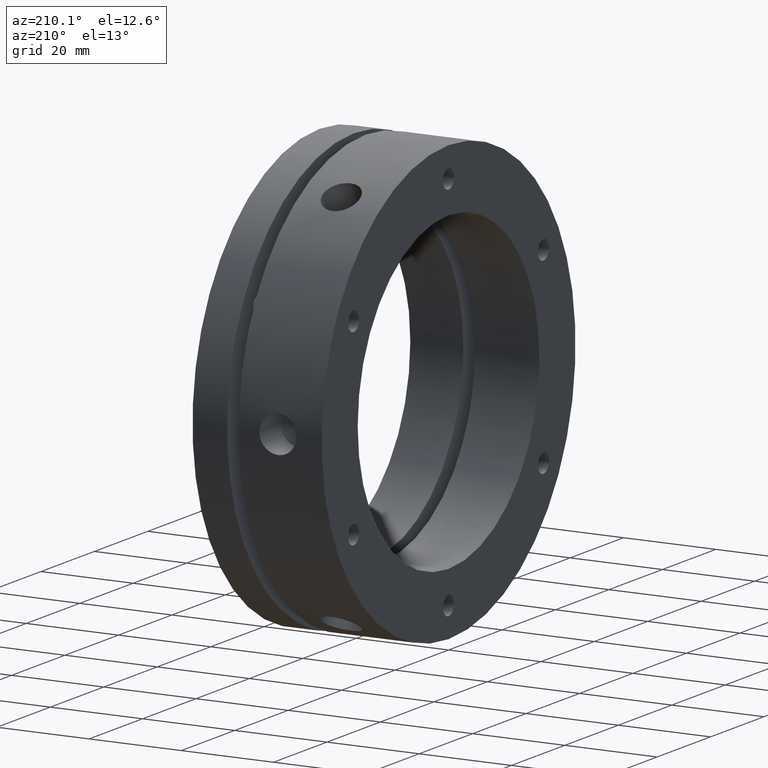
[diagram: clean part render]
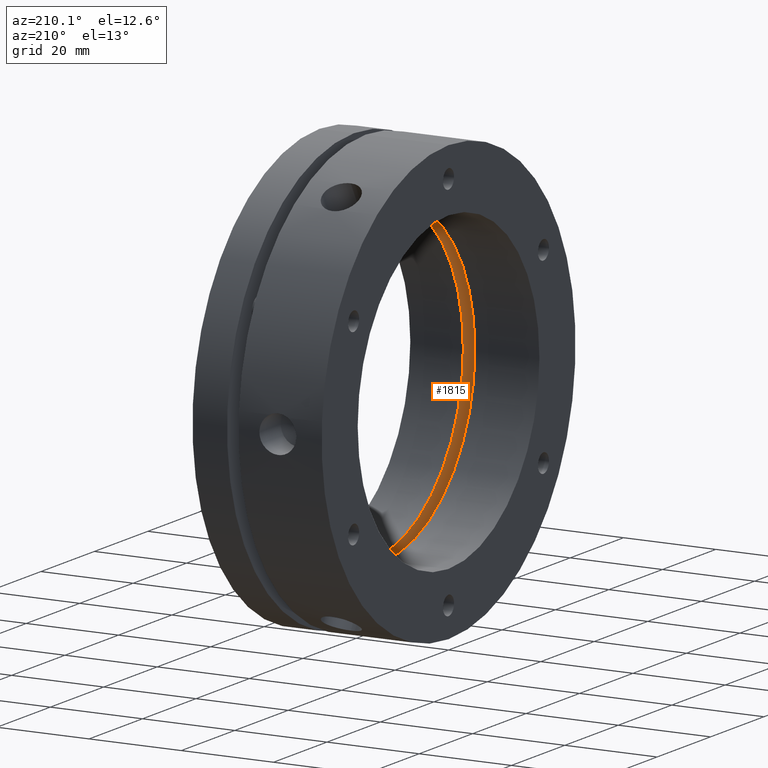
[diagram: same view with one face highlighted and labeled with its STEP entity id]
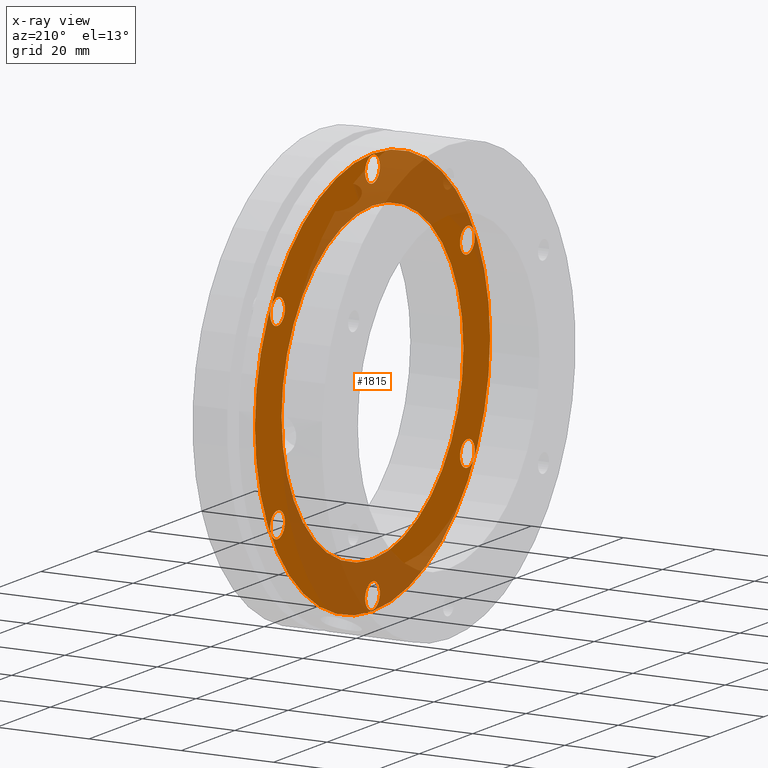
[diagram: x-ray of the same camera — body ghosted, the highlighted face saturated]
A machine part, auxiliary view. The second image highlights one B-rep face of the part: STEP entity #1815.
The next image is the same camera in x-ray: the body ghosted, the highlighted face saturated — about 39% of this face is hidden behind the body in this view.
In plain terms, the highlighted planar face has unit normal (1, 0, 0).
Its self-contained STEP definition (entity closure, byte-faithful):
#131 = EDGE_CURVE ( 'NONE', #1358, #1359, #320, .T. ) ;
#141 = EDGE_CURVE ( 'NONE', #4755, #4754, #334, .T. ) ;
#145 = EDGE_CURVE ( 'NONE', #151, #1799, #340, .T. ) ;
#149 = EDGE_CURVE ( 'NONE', #1277, #4758, #349, .T. ) ;
#151 = VERTEX_POINT ( 'NONE', #2064 ) ;
#221 = EDGE_LOOP ( 'NONE', ( #692, #694 ) ) ;
#231 = EDGE_LOOP ( 'NONE', ( #653, #652 ) ) ;
#234 = EDGE_LOOP ( 'NONE', ( #705, #704 ) ) ;
#235 = EDGE_LOOP ( 'NONE', ( #693, #648 ) ) ;
#243 = EDGE_LOOP ( 'NONE', ( #632, #615 ) ) ;
#244 = EDGE_LOOP ( 'NONE', ( #657, #678 ) ) ;
#245 = EDGE_LOOP ( 'NONE', ( #614, #700 ) ) ;
#246 = EDGE_LOOP ( 'NONE', ( #608, #706 ) ) ;
#320 = CIRCLE ( 'NONE', #3028, 2.749999999999999100 ) ;
#334 = CIRCLE ( 'NONE', #3032, 2.749999999999999100 ) ;
#340 = CIRCLE ( 'NONE', #3034, 2.749999999999999100 ) ;
#349 = CIRCLE ( 'NONE', #3036, 2.750000000000002700 ) ;
#491 = AXIS2_PLACEMENT_3D ( 'NONE', #3336, #3334, #3340 ) ;
#608 = ORIENTED_EDGE ( 'NONE', *, *, #3142, .F. ) ;
#614 = ORIENTED_EDGE ( 'NONE', *, *, #3014, .T. ) ;
#615 = ORIENTED_EDGE ( 'NONE', *, *, #149, .T. ) ;
#632 = ORIENTED_EDGE ( 'NONE', *, *, #3018, .T. ) ;
#648 = ORIENTED_EDGE ( 'NONE', *, *, #4722, .T. ) ;
#652 = ORIENTED_EDGE ( 'NONE', *, *, #131, .T. ) ;
#653 = ORIENTED_EDGE ( 'NONE', *, *, #3013, .T. ) ;
#657 = ORIENTED_EDGE ( 'NONE', *, *, #3016, .T. ) ;
#678 = ORIENTED_EDGE ( 'NONE', *, *, #145, .T. ) ;
#692 = ORIENTED_EDGE ( 'NONE', *, *, #3017, .T. ) ;
#693 = ORIENTED_EDGE ( 'NONE', *, *, #3015, .T. ) ;
#694 = ORIENTED_EDGE ( 'NONE', *, *, #141, .T. ) ;
#700 = ORIENTED_EDGE ( 'NONE', *, *, #3124, .T. ) ;
#704 = ORIENTED_EDGE ( 'NONE', *, *, #2981, .F. ) ;
#705 = ORIENTED_EDGE ( 'NONE', *, *, #897, .F. ) ;
#706 = ORIENTED_EDGE ( 'NONE', *, *, #3020, .F. ) ;
#897 = EDGE_CURVE ( 'NONE', #1394, #1395, #2734, .T. ) ;
#939 = CARTESIAN_POINT ( 'NONE',  ( 16.49999999999998900, -35.50704155516201200, 17.75000000000002100 ) ) ;
#941 = CARTESIAN_POINT ( 'NONE',  ( 16.49999999999998900, 0.0000000000000000000, 38.25000000000002800 ) ) ;
#942 = CARTESIAN_POINT ( 'NONE',  ( 16.49999999999998900, -35.50704155516201200, 23.25000000000002100 ) ) ;
#950 = CARTESIAN_POINT ( 'NONE',  ( 16.49999999999998900, 3.367778697655217600E-016, 43.75000000000002800 ) ) ;
#1277 = VERTEX_POINT ( 'NONE', #950 ) ;
#1350 = VERTEX_POINT ( 'NONE', #3178 ) ;
#1351 = VERTEX_POINT ( 'NONE', #3174 ) ;
#1354 = VERTEX_POINT ( 'NONE', #3180 ) ;
#1355 = VERTEX_POINT ( 'NONE', #2629 ) ;
#1358 = VERTEX_POINT ( 'NONE', #3183 ) ;
#1359 = VERTEX_POINT ( 'NONE', #3184 ) ;
#1362 = VERTEX_POINT ( 'NONE', #3187 ) ;
#1363 = VERTEX_POINT ( 'NONE', #3188 ) ;
#1394 = VERTEX_POINT ( 'NONE', #3219 ) ;
#1395 = VERTEX_POINT ( 'NONE', #3220 ) ;
#1799 = VERTEX_POINT ( 'NONE', #3281 ) ;
#1815 = ADVANCED_FACE ( 'NONE', ( #2796, #2800, #2797, #2799, #2798, #2801, #2802, #2803 ), #3338, .F. ) ;
#2026 = CARTESIAN_POINT ( 'NONE',  ( 16.49999999999998900, 35.50704155516203300, 20.49999999999998900 ) ) ;
#2027 = DIRECTION ( 'NONE',  ( 1.000000000000000000, 0.0000000000000000000, 0.0000000000000000000 ) ) ;
#2028 = DIRECTION ( 'NONE',  ( 0.0000000000000000000, 0.0000000000000000000, -1.000000000000000000 ) ) ;
#2051 = CARTESIAN_POINT ( 'NONE',  ( 16.49999999999998900, -35.50704155516201200, 20.50000000000002100 ) ) ;
#2052 = DIRECTION ( 'NONE',  ( 1.000000000000000000, 0.0000000000000000000, 0.0000000000000000000 ) ) ;
#2053 = DIRECTION ( 'NONE',  ( 0.0000000000000000000, 0.0000000000000000000, -1.000000000000000000 ) ) ;
#2060 = CARTESIAN_POINT ( 'NONE',  ( 16.49999999999998900, -35.50704155516201900, -20.50000000000000700 ) ) ;
#2061 = DIRECTION ( 'NONE',  ( 1.000000000000000000, 0.0000000000000000000, 0.0000000000000000000 ) ) ;
#2062 = DIRECTION ( 'NONE',  ( 0.0000000000000000000, 0.0000000000000000000, -1.000000000000000000 ) ) ;
#2064 = CARTESIAN_POINT ( 'NONE',  ( 16.49999999999998900, -35.50704155516201900, -17.75000000000000700 ) ) ;
#2070 = CARTESIAN_POINT ( 'NONE',  ( 16.49999999999998900, 0.0000000000000000000, 41.00000000000002800 ) ) ;
#2071 = DIRECTION ( 'NONE',  ( 1.000000000000000000, 0.0000000000000000000, 0.0000000000000000000 ) ) ;
#2072 = DIRECTION ( 'NONE',  ( 0.0000000000000000000, 0.0000000000000000000, -1.000000000000000000 ) ) ;
#2568 = CARTESIAN_POINT ( 'NONE',  ( 16.50000000000000000, 0.0000000000000000000, 0.0000000000000000000 ) ) ;
#2569 = DIRECTION ( 'NONE',  ( -1.000000000000000000, -0.0000000000000000000, -0.0000000000000000000 ) ) ;
#2570 = DIRECTION ( 'NONE',  ( 0.0000000000000000000, 0.0000000000000000000, -1.000000000000000000 ) ) ;
#2629 = CARTESIAN_POINT ( 'NONE',  ( 16.49999999999998900, 35.50704155516199700, -23.25000000000003600 ) ) ;
#2734 = CIRCLE ( 'NONE', #3090, 34.00000000000000000 ) ;
#2796 = FACE_BOUND ( 'NONE', #234, .T. ) ;
#2797 = FACE_BOUND ( 'NONE', #221, .T. ) ;
#2798 = FACE_BOUND ( 'NONE', #235, .T. ) ;
#2799 = FACE_BOUND ( 'NONE', #244, .T. ) ;
#2800 = FACE_BOUND ( 'NONE', #243, .T. ) ;
#2801 = FACE_BOUND ( 'NONE', #245, .T. ) ;
#2802 = FACE_BOUND ( 'NONE', #231, .T. ) ;
#2803 = FACE_OUTER_BOUND ( 'NONE', #246, .T. ) ;
#2981 = EDGE_CURVE ( 'NONE', #1395, #1394, #4254, .T. ) ;
#3013 = EDGE_CURVE ( 'NONE', #1359, #1358, #4292, .T. ) ;
#3014 = EDGE_CURVE ( 'NONE', #1355, #1354, #4293, .T. ) ;
#3015 = EDGE_CURVE ( 'NONE', #1351, #1350, #4284, .T. ) ;
#3016 = EDGE_CURVE ( 'NONE', #1799, #151, #4294, .T. ) ;
#3017 = EDGE_CURVE ( 'NONE', #4754, #4755, #4296, .T. ) ;
#3018 = EDGE_CURVE ( 'NONE', #4758, #1277, #4297, .T. ) ;
#3020 = EDGE_CURVE ( 'NONE', #1363, #1362, #4295, .T. ) ;
#3028 = AXIS2_PLACEMENT_3D ( 'NONE', #2026, #2027, #2028 ) ;
#3032 = AXIS2_PLACEMENT_3D ( 'NONE', #2051, #2052, #2053 ) ;
#3034 = AXIS2_PLACEMENT_3D ( 'NONE', #2060, #2061, #2062 ) ;
#3036 = AXIS2_PLACEMENT_3D ( 'NONE', #2070, #2071, #2072 ) ;
#3090 = AXIS2_PLACEMENT_3D ( 'NONE', #2568, #2569, #2570 ) ;
#3124 = EDGE_CURVE ( 'NONE', #1354, #1355, #4325, .T. ) ;
#3142 = EDGE_CURVE ( 'NONE', #1362, #1363, #4361, .T. ) ;
#3174 = CARTESIAN_POINT ( 'NONE',  ( 16.49999999999998900, -6.661337999999999900E-015, -43.75000000000002800 ) ) ;
#3178 = CARTESIAN_POINT ( 'NONE',  ( 16.49999999999998900, -6.324560130234478200E-015, -38.25000000000002800 ) ) ;
#3180 = CARTESIAN_POINT ( 'NONE',  ( 16.49999999999998900, 35.50704155516199700, -17.75000000000003600 ) ) ;
#3183 = CARTESIAN_POINT ( 'NONE',  ( 16.49999999999998900, 35.50704155516203300, 23.24999999999998900 ) ) ;
#3184 = CARTESIAN_POINT ( 'NONE',  ( 16.49999999999998900, 35.50704155516203300, 17.74999999999999300 ) ) ;
#3187 = CARTESIAN_POINT ( 'NONE',  ( 16.49999999999999600, 0.0000000000000000000, 44.00000000000000000 ) ) ;
#3188 = CARTESIAN_POINT ( 'NONE',  ( 16.49999999999999600, 5.388445916248353600E-015, -44.00000000000000000 ) ) ;
#3219 = CARTESIAN_POINT ( 'NONE',  ( 16.50000000000000000, 0.0000000000000000000, -34.00000000000000000 ) ) ;
#3220 = CARTESIAN_POINT ( 'NONE',  ( 16.50000000000000000, 4.163799117101000600E-015, 34.00000000000000000 ) ) ;
#3281 = CARTESIAN_POINT ( 'NONE',  ( 16.49999999999998900, -35.50704155516201900, -23.25000000000000700 ) ) ;
#3334 = DIRECTION ( 'NONE',  ( 1.000000000000000000, -0.0000000000000000000, 0.0000000000000000000 ) ) ;
#3336 = CARTESIAN_POINT ( 'NONE',  ( 16.50000000000000000, 22.00000000000000000, 0.0000000000000000000 ) ) ;
#3338 = PLANE ( 'NONE',  #491 ) ;
#3340 = DIRECTION ( 'NONE',  ( 0.0000000000000000000, 0.0000000000000000000, -1.000000000000000000 ) ) ;
#3741 = CARTESIAN_POINT ( 'NONE',  ( 16.50000000000000000, 0.0000000000000000000, 0.0000000000000000000 ) ) ;
#3742 = DIRECTION ( 'NONE',  ( -1.000000000000000000, -0.0000000000000000000, -0.0000000000000000000 ) ) ;
#3743 = DIRECTION ( 'NONE',  ( 0.0000000000000000000, 0.0000000000000000000, -1.000000000000000000 ) ) ;
#3831 = CARTESIAN_POINT ( 'NONE',  ( 16.49999999999998900, 35.50704155516203300, 20.49999999999998900 ) ) ;
#3832 = DIRECTION ( 'NONE',  ( 1.000000000000000000, 0.0000000000000000000, 0.0000000000000000000 ) ) ;
#3833 = DIRECTION ( 'NONE',  ( 0.0000000000000000000, 0.0000000000000000000, -1.000000000000000000 ) ) ;
#3834 = CARTESIAN_POINT ( 'NONE',  ( 16.49999999999998900, 35.50704155516199700, -20.50000000000003600 ) ) ;
#3835 = DIRECTION ( 'NONE',  ( 1.000000000000000000, 0.0000000000000000000, 0.0000000000000000000 ) ) ;
#3836 = DIRECTION ( 'NONE',  ( 0.0000000000000000000, 0.0000000000000000000, -1.000000000000000000 ) ) ;
#3837 = CARTESIAN_POINT ( 'NONE',  ( 16.49999999999998900, -6.661337999999999900E-015, -41.00000000000002800 ) ) ;
#3838 = DIRECTION ( 'NONE',  ( 1.000000000000000000, 0.0000000000000000000, 0.0000000000000000000 ) ) ;
#3839 = DIRECTION ( 'NONE',  ( 0.0000000000000000000, 0.0000000000000000000, -1.000000000000000000 ) ) ;
#3840 = CARTESIAN_POINT ( 'NONE',  ( 16.49999999999998900, -35.50704155516201900, -20.50000000000000700 ) ) ;
#3841 = DIRECTION ( 'NONE',  ( 1.000000000000000000, 0.0000000000000000000, 0.0000000000000000000 ) ) ;
#3842 = DIRECTION ( 'NONE',  ( 0.0000000000000000000, 0.0000000000000000000, -1.000000000000000000 ) ) ;
#3843 = CARTESIAN_POINT ( 'NONE',  ( 16.49999999999998900, -35.50704155516201200, 20.50000000000002100 ) ) ;
#3844 = DIRECTION ( 'NONE',  ( 1.000000000000000000, 0.0000000000000000000, 0.0000000000000000000 ) ) ;
#3845 = DIRECTION ( 'NONE',  ( 0.0000000000000000000, 0.0000000000000000000, -1.000000000000000000 ) ) ;
#3846 = CARTESIAN_POINT ( 'NONE',  ( 16.49999999999998900, 0.0000000000000000000, 41.00000000000002800 ) ) ;
#3847 = DIRECTION ( 'NONE',  ( 1.000000000000000000, 0.0000000000000000000, 0.0000000000000000000 ) ) ;
#3848 = DIRECTION ( 'NONE',  ( 0.0000000000000000000, 0.0000000000000000000, -1.000000000000000000 ) ) ;
#3853 = CARTESIAN_POINT ( 'NONE',  ( 16.49999999999999600, 0.0000000000000000000, 0.0000000000000000000 ) ) ;
#3854 = DIRECTION ( 'NONE',  ( 1.000000000000000000, -0.0000000000000000000, -0.0000000000000000000 ) ) ;
#3855 = DIRECTION ( 'NONE',  ( 0.0000000000000000000, 0.0000000000000000000, 1.000000000000000000 ) ) ;
#3913 = CARTESIAN_POINT ( 'NONE',  ( 16.49999999999998900, 35.50704155516199700, -20.50000000000003600 ) ) ;
#3914 = DIRECTION ( 'NONE',  ( 1.000000000000000000, 0.0000000000000000000, 0.0000000000000000000 ) ) ;
#3915 = DIRECTION ( 'NONE',  ( 0.0000000000000000000, 0.0000000000000000000, -1.000000000000000000 ) ) ;
#3951 = CARTESIAN_POINT ( 'NONE',  ( 16.49999999999999600, 0.0000000000000000000, 0.0000000000000000000 ) ) ;
#3952 = DIRECTION ( 'NONE',  ( 1.000000000000000000, -0.0000000000000000000, -0.0000000000000000000 ) ) ;
#3953 = DIRECTION ( 'NONE',  ( 0.0000000000000000000, 0.0000000000000000000, 1.000000000000000000 ) ) ;
#4091 = CARTESIAN_POINT ( 'NONE',  ( 16.49999999999998900, -6.661337999999999900E-015, -41.00000000000002800 ) ) ;
#4092 = DIRECTION ( 'NONE',  ( 1.000000000000000000, 0.0000000000000000000, 0.0000000000000000000 ) ) ;
#4093 = DIRECTION ( 'NONE',  ( 0.0000000000000000000, 0.0000000000000000000, -1.000000000000000000 ) ) ;
#4254 = CIRCLE ( 'NONE', #4467, 34.00000000000000000 ) ;
#4284 = CIRCLE ( 'NONE', #4497, 2.750000000000002700 ) ;
#4292 = CIRCLE ( 'NONE', #4495, 2.749999999999999100 ) ;
#4293 = CIRCLE ( 'NONE', #4496, 2.749999999999999100 ) ;
#4294 = CIRCLE ( 'NONE', #4498, 2.749999999999999100 ) ;
#4295 = CIRCLE ( 'NONE', #4502, 44.00000000000000000 ) ;
#4296 = CIRCLE ( 'NONE', #4499, 2.749999999999999100 ) ;
#4297 = CIRCLE ( 'NONE', #4500, 2.750000000000002700 ) ;
#4325 = CIRCLE ( 'NONE', #4515, 2.749999999999999100 ) ;
#4361 = CIRCLE ( 'NONE', #4519, 44.00000000000000000 ) ;
#4404 = CIRCLE ( 'NONE', #4533, 2.750000000000002700 ) ;
#4467 = AXIS2_PLACEMENT_3D ( 'NONE', #3741, #3742, #3743 ) ;
#4495 = AXIS2_PLACEMENT_3D ( 'NONE', #3831, #3832, #3833 ) ;
#4496 = AXIS2_PLACEMENT_3D ( 'NONE', #3834, #3835, #3836 ) ;
#4497 = AXIS2_PLACEMENT_3D ( 'NONE', #3837, #3838, #3839 ) ;
#4498 = AXIS2_PLACEMENT_3D ( 'NONE', #3840, #3841, #3842 ) ;
#4499 = AXIS2_PLACEMENT_3D ( 'NONE', #3843, #3844, #3845 ) ;
#4500 = AXIS2_PLACEMENT_3D ( 'NONE', #3846, #3847, #3848 ) ;
#4502 = AXIS2_PLACEMENT_3D ( 'NONE', #3853, #3854, #3855 ) ;
#4515 = AXIS2_PLACEMENT_3D ( 'NONE', #3913, #3914, #3915 ) ;
#4519 = AXIS2_PLACEMENT_3D ( 'NONE', #3951, #3952, #3953 ) ;
#4533 = AXIS2_PLACEMENT_3D ( 'NONE', #4091, #4092, #4093 ) ;
#4722 = EDGE_CURVE ( 'NONE', #1350, #1351, #4404, .T. ) ;
#4754 = VERTEX_POINT ( 'NONE', #939 ) ;
#4755 = VERTEX_POINT ( 'NONE', #942 ) ;
#4758 = VERTEX_POINT ( 'NONE', #941 ) ;